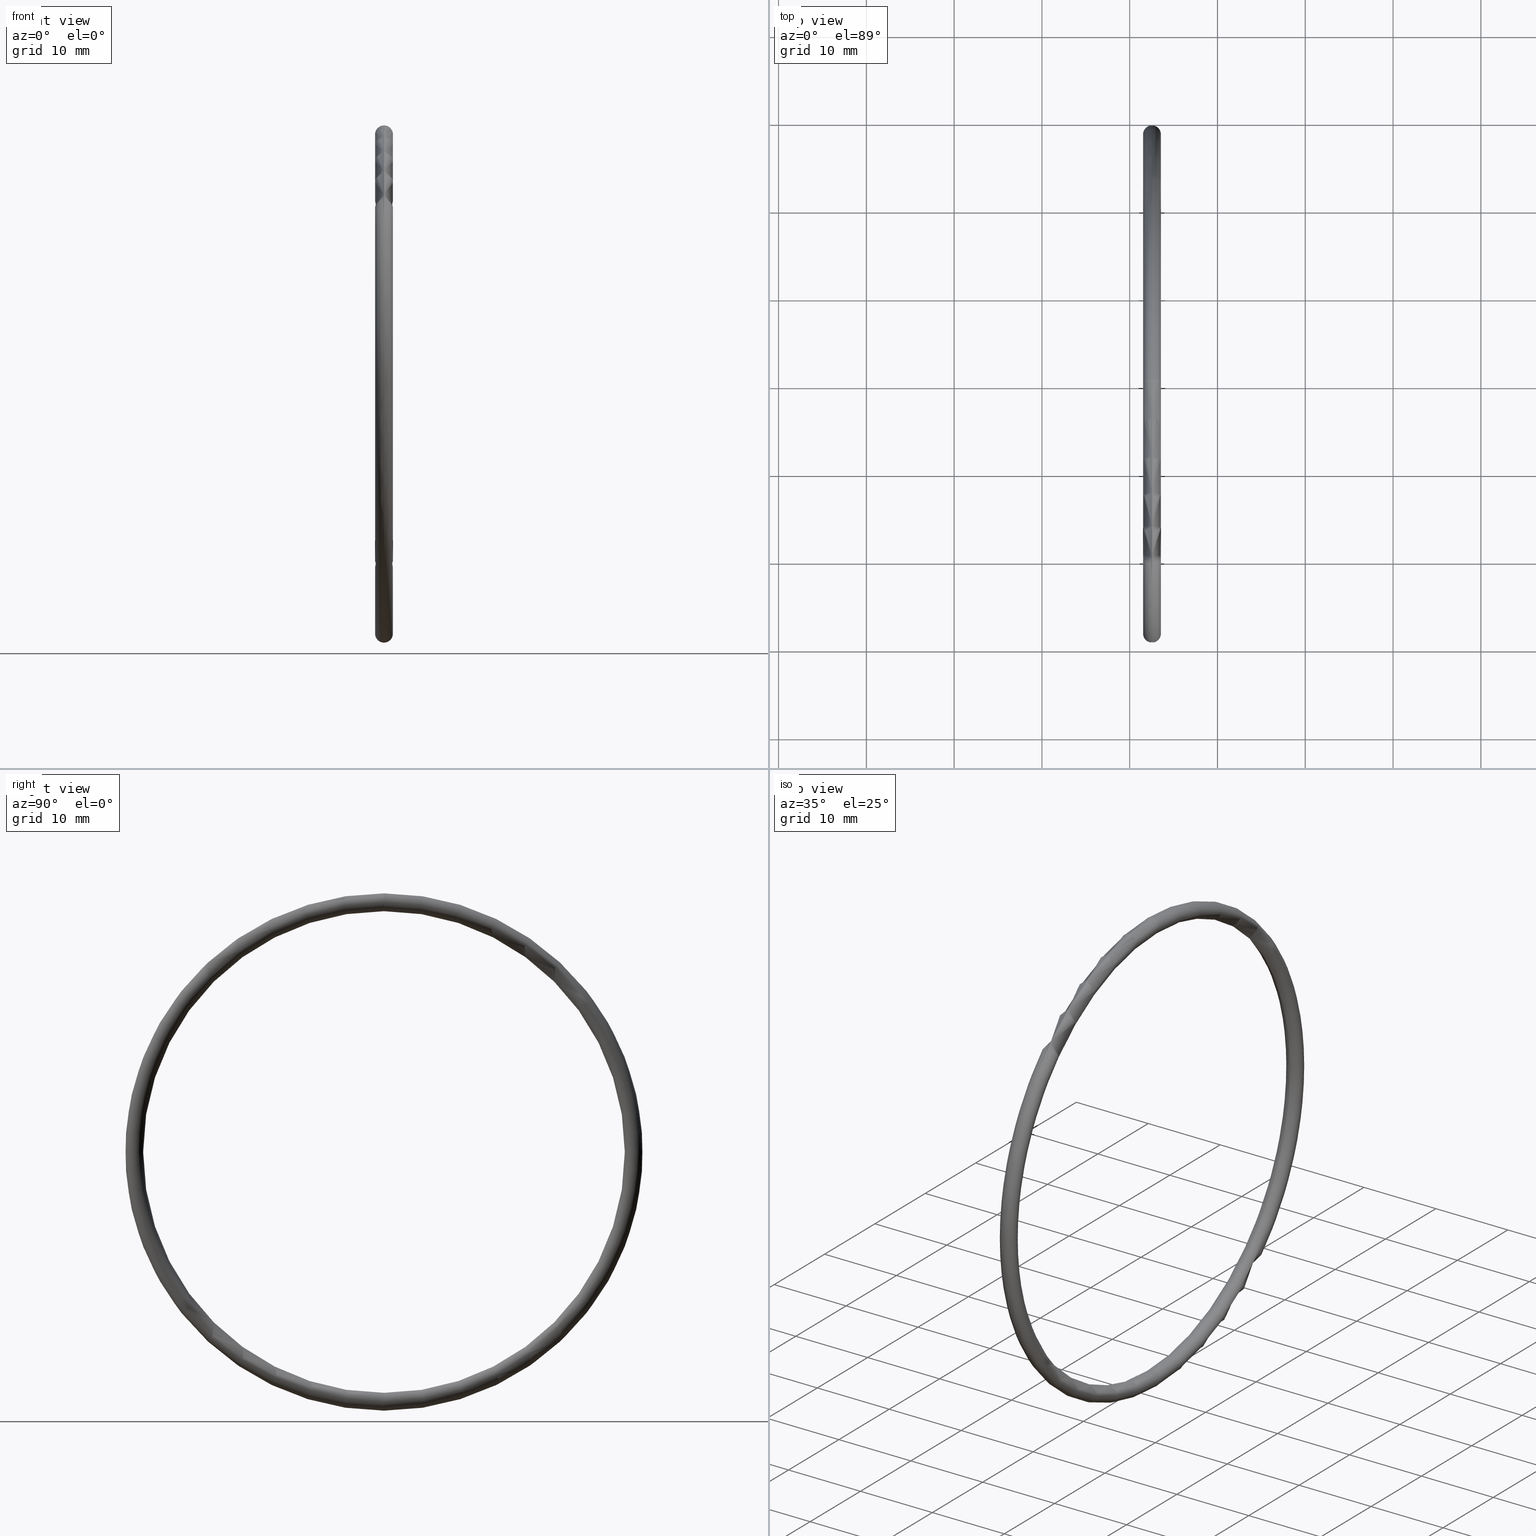
[diagram: canonical four-view strip — front | top / right | iso, engineering-drawing reading convention]
A machine part, canonical four-view strip (front | top / right | iso — engineering-drawing reading convention). The complete STEP part file that produces these views, byte-faithful:
ISO-10303-21;
HEADER;
FILE_DESCRIPTION (( 'STEP AP203' ),
    '1' );
FILE_NAME ('OM-63-BN.STEP',
    '2008-03-29T09:22:32',
    ( 'Baystate-05' ),
    ( 'BayState InfoTech' ),
    'SwSTEP 2.0',
    'SolidWorks 2007',
    '' );
FILE_SCHEMA (( 'CONFIG_CONTROL_DESIGN' ));
ENDSEC;

DATA;
#1 = TOROIDAL_SURFACE ( 'NONE', #2, 1.120000000000000100, 0.03999999999999995200 ) ;
#2 = AXIS2_PLACEMENT_3D ( 'NONE', #9, #15, #84 ) ;
#3 = FACE_OUTER_BOUND ( 'NONE', #34, .T. ) ;
#4 = DIRECTION ( 'NONE',  ( 0.0000000000000000000, -1.224646799147351000E-016, 1.000000000000000000 ) ) ;
#5 = DIRECTION ( 'NONE',  ( 0.0000000000000000000, 1.000000000000000000, 1.224646799147353200E-016 ) ) ;
#6 = CARTESIAN_POINT ( 'NONE',  ( 0.1000000000000001400, 1.371604415045035500E-016, -1.120000000000000100 ) ) ;
#7 = AXIS2_PLACEMENT_3D ( 'NONE', #6, #5, #4 ) ;
#8 = CIRCLE ( 'NONE', #7, 0.03999999999999998000 ) ;
#9 = CARTESIAN_POINT ( 'NONE',  ( 0.1000000000000001400, 0.0000000000000000000, 0.0000000000000000000 ) ) ;
#10 = DIRECTION ( 'NONE',  ( 0.0000000000000000000, 0.0000000000000000000, 1.000000000000000000 ) ) ;
#11 = DIRECTION ( 'NONE',  ( -1.000000000000000000, 0.0000000000000000000, 0.0000000000000000000 ) ) ;
#12 = CARTESIAN_POINT ( 'NONE',  ( 0.1000000000000001400, 0.0000000000000000000, 0.0000000000000000000 ) ) ;
#13 = AXIS2_PLACEMENT_3D ( 'NONE', #12, #11, #10 ) ;
#14 = CIRCLE ( 'NONE', #13, 1.080000000000000100 ) ;
#15 = DIRECTION ( 'NONE',  ( -1.000000000000000000, 0.0000000000000000000, 0.0000000000000000000 ) ) ;
#16 = CARTESIAN_POINT ( 'NONE',  ( 0.1000000000000001400, 0.0000000000000000000, 1.160000000000000100 ) ) ;
#17 = DIRECTION ( 'NONE',  ( 0.0000000000000000000, 0.0000000000000000000, 1.000000000000000000 ) ) ;
#18 = DIRECTION ( 'NONE',  ( -1.000000000000000000, 0.0000000000000000000, 0.0000000000000000000 ) ) ;
#19 = CARTESIAN_POINT ( 'NONE',  ( 0.1000000000000001400, 0.0000000000000000000, 0.0000000000000000000 ) ) ;
#20 = AXIS2_PLACEMENT_3D ( 'NONE', #19, #18, #17 ) ;
#21 = CIRCLE ( 'NONE', #20, 1.160000000000000100 ) ;
#22 = MANIFOLD_SOLID_BREP ( 'NONE', #31 ) ;
#23 = EDGE_CURVE ( 'NONE', #52, #53, #63, .T. ) ;
#24 = EDGE_CURVE ( 'NONE', #65, #25, #21, .T. ) ;
#25 = VERTEX_POINT ( 'NONE', #16 ) ;
#26 = ORIENTED_EDGE ( 'NONE', *, *, #27, .F. ) ;
#27 = EDGE_CURVE ( 'NONE', #53, #52, #14, .T. ) ;
#28 = ORIENTED_EDGE ( 'NONE', *, *, #45, .F. ) ;
#29 = ORIENTED_EDGE ( 'NONE', *, *, #27, .T. ) ;
#30 = ORIENTED_EDGE ( 'NONE', *, *, #42, .T. ) ;
#31 = CLOSED_SHELL ( 'NONE', ( #35, #33, #38, #46 ) ) ;
#32 = EDGE_CURVE ( 'NONE', #65, #53, #8, .T. ) ;
#33 = ADVANCED_FACE ( 'NONE', ( #3 ), #1, .T. ) ;
#34 = EDGE_LOOP ( 'NONE', ( #54, #55, #57, #58 ) ) ;
#35 = ADVANCED_FACE ( 'NONE', ( #66 ), #87, .T. ) ;
#36 = EDGE_LOOP ( 'NONE', ( #64, #49, #50, #26 ) ) ;
#37 = PERSON ( 'UNSPECIFIED', 'UNSPECIFIED', 'UNSPECIFIED', ('UNSPECIFIED'), ('UNSPECIFIED'), ('UNSPECIFIED') ) ;
#38 = ADVANCED_FACE ( 'NONE', ( #75 ), #67, .T. ) ;
#39 = EDGE_LOOP ( 'NONE', ( #40, #41, #43, #44 ) ) ;
#40 = ORIENTED_EDGE ( 'NONE', *, *, #56, .F. ) ;
#41 = ORIENTED_EDGE ( 'NONE', *, *, #42, .F. ) ;
#42 = EDGE_CURVE ( 'NONE', #52, #25, #70, .T. ) ;
#43 = ORIENTED_EDGE ( 'NONE', *, *, #23, .T. ) ;
#44 = ORIENTED_EDGE ( 'NONE', *, *, #45, .T. ) ;
#45 = EDGE_CURVE ( 'NONE', #53, #65, #79, .T. ) ;
#46 = ADVANCED_FACE ( 'NONE', ( #104 ), #93, .T. ) ;
#47 = EDGE_LOOP ( 'NONE', ( #48, #28, #29, #30 ) ) ;
#48 = ORIENTED_EDGE ( 'NONE', *, *, #24, .F. ) ;
#49 = ORIENTED_EDGE ( 'NONE', *, *, #24, .T. ) ;
#50 = ORIENTED_EDGE ( 'NONE', *, *, #51, .T. ) ;
#51 = EDGE_CURVE ( 'NONE', #25, #52, #94, .T. ) ;
#52 = VERTEX_POINT ( 'NONE', #98 ) ;
#53 = VERTEX_POINT ( 'NONE', #97 ) ;
#54 = ORIENTED_EDGE ( 'NONE', *, *, #51, .F. ) ;
#55 = ORIENTED_EDGE ( 'NONE', *, *, #56, .T. ) ;
#56 = EDGE_CURVE ( 'NONE', #25, #65, #113, .T. ) ;
#57 = ORIENTED_EDGE ( 'NONE', *, *, #32, .T. ) ;
#58 = ORIENTED_EDGE ( 'NONE', *, *, #23, .F. ) ;
#59 = DIRECTION ( 'NONE',  ( 0.0000000000000000000, 0.0000000000000000000, 1.000000000000000000 ) ) ;
#60 = DIRECTION ( 'NONE',  ( -1.000000000000000000, 0.0000000000000000000, 0.0000000000000000000 ) ) ;
#61 = CARTESIAN_POINT ( 'NONE',  ( 0.1000000000000001400, 0.0000000000000000000, 0.0000000000000000000 ) ) ;
#62 = AXIS2_PLACEMENT_3D ( 'NONE', #61, #60, #59 ) ;
#63 = CIRCLE ( 'NONE', #62, 1.080000000000000100 ) ;
#64 = ORIENTED_EDGE ( 'NONE', *, *, #32, .F. ) ;
#65 = VERTEX_POINT ( 'NONE', #122 ) ;
#66 = FACE_OUTER_BOUND ( 'NONE', #36, .T. ) ;
#67 = TOROIDAL_SURFACE ( 'NONE', #68, 1.120000000000000100, 0.03999999999999995200 ) ;
#68 = AXIS2_PLACEMENT_3D ( 'NONE', #74, #73, #72 ) ;
#69 = CARTESIAN_POINT ( 'NONE',  ( 0.1000000000000001400, 0.0000000000000000000, 1.120000000000000100 ) ) ;
#70 = CIRCLE ( 'NONE', #82, 0.03999999999999998000 ) ;
#71 = CARTESIAN_POINT ( 'NONE',  ( 0.1000000000000001400, 1.371604415045035500E-016, -1.120000000000000100 ) ) ;
#72 = DIRECTION ( 'NONE',  ( 0.0000000000000000000, 0.0000000000000000000, 1.000000000000000000 ) ) ;
#73 = DIRECTION ( 'NONE',  ( -1.000000000000000000, 0.0000000000000000000, 0.0000000000000000000 ) ) ;
#74 = CARTESIAN_POINT ( 'NONE',  ( 0.1000000000000001400, 0.0000000000000000000, 0.0000000000000000000 ) ) ;
#75 = FACE_OUTER_BOUND ( 'NONE', #39, .T. ) ;
#76 = DIRECTION ( 'NONE',  ( 0.0000000000000000000, -1.224646799147351000E-016, 1.000000000000000000 ) ) ;
#77 = DIRECTION ( 'NONE',  ( 0.0000000000000000000, 1.000000000000000000, 1.224646799147353200E-016 ) ) ;
#78 = AXIS2_PLACEMENT_3D ( 'NONE', #71, #77, #76 ) ;
#79 = CIRCLE ( 'NONE', #78, 0.03999999999999998000 ) ;
#80 = DIRECTION ( 'NONE',  ( 0.0000000000000000000, 0.0000000000000000000, -1.000000000000000000 ) ) ;
#81 = DIRECTION ( 'NONE',  ( 0.0000000000000000000, -1.000000000000000000, 0.0000000000000000000 ) ) ;
#82 = AXIS2_PLACEMENT_3D ( 'NONE', #69, #81, #80 ) ;
#83 = CARTESIAN_POINT ( 'NONE',  ( 0.1000000000000001400, 0.0000000000000000000, 0.0000000000000000000 ) ) ;
#84 = DIRECTION ( 'NONE',  ( 0.0000000000000000000, 0.0000000000000000000, 1.000000000000000000 ) ) ;
#85 = DIRECTION ( 'NONE',  ( 0.0000000000000000000, 0.0000000000000000000, 1.000000000000000000 ) ) ;
#86 = AXIS2_PLACEMENT_3D ( 'NONE', #83, #88, #85 ) ;
#87 = TOROIDAL_SURFACE ( 'NONE', #86, 1.120000000000000100, 0.03999999999999995200 ) ;
#88 = DIRECTION ( 'NONE',  ( -1.000000000000000000, 0.0000000000000000000, 0.0000000000000000000 ) ) ;
#89 = DIRECTION ( 'NONE',  ( 1.000000000000000000, 0.0000000000000000000, 0.0000000000000000000 ) ) ;
#90 = DIRECTION ( 'NONE',  ( 0.0000000000000000000, 0.0000000000000000000, 1.000000000000000000 ) ) ;
#91 = CARTESIAN_POINT ( 'NONE',  ( 0.0000000000000000000, 0.0000000000000000000, 0.0000000000000000000 ) ) ;
#92 = AXIS2_PLACEMENT_3D ( 'NONE', #91, #90, #89 ) ;
#93 = TOROIDAL_SURFACE ( 'NONE', #100, 1.120000000000000100, 0.03999999999999995200 ) ;
#94 = CIRCLE ( 'NONE', #115, 0.03999999999999998000 ) ;
#95 = ADVANCED_BREP_SHAPE_REPRESENTATION ( 'OM-63-BN', ( #22, #92 ), #99 ) ;
#96 = CARTESIAN_POINT ( 'NONE',  ( 0.1000000000000001400, 0.0000000000000000000, 0.0000000000000000000 ) ) ;
#97 = CARTESIAN_POINT ( 'NONE',  ( 0.1000000000000001400, 1.322618543079141500E-016, -1.080000000000000100 ) ) ;
#98 = CARTESIAN_POINT ( 'NONE',  ( 0.1000000000000001400, 0.0000000000000000000, 1.080000000000000100 ) ) ;
#99 =( GEOMETRIC_REPRESENTATION_CONTEXT ( 3 ) GLOBAL_UNCERTAINTY_ASSIGNED_CONTEXT ( ( #117 ) ) GLOBAL_UNIT_ASSIGNED_CONTEXT ( ( #119, #101, #118 ) ) REPRESENTATION_CONTEXT ( 'NONE', 'WORKASPACE' ) );
#100 = AXIS2_PLACEMENT_3D ( 'NONE', #96, #105, #121 ) ;
#101 =( NAMED_UNIT ( * ) PLANE_ANGLE_UNIT ( ) SI_UNIT ( $, .RADIAN. ) );
#102 = CARTESIAN_POINT ( 'NONE',  ( 0.1000000000000001400, 0.0000000000000000000, 1.120000000000000100 ) ) ;
#103 = DIMENSIONAL_EXPONENTS ( 1.000000000000000000, 0.0000000000000000000, 0.0000000000000000000, 0.0000000000000000000, 0.0000000000000000000, 0.0000000000000000000, 0.0000000000000000000 ) ;
#104 = FACE_OUTER_BOUND ( 'NONE', #47, .T. ) ;
#105 = DIRECTION ( 'NONE',  ( -1.000000000000000000, 0.0000000000000000000, 0.0000000000000000000 ) ) ;
#106 =( LENGTH_UNIT ( ) NAMED_UNIT ( * ) SI_UNIT ( $, .METRE. ) );
#107 = PRODUCT ( 'OM-63-BN', 'OM-63-BN', '', ( #108 ) ) ;
#108 = MECHANICAL_CONTEXT ( 'NONE', #110, 'mechanical' ) ;
#109 = APPLICATION_PROTOCOL_DEFINITION ( 'international standard', 'config_control_design', 1994, #110 ) ;
#110 = APPLICATION_CONTEXT ( 'configuration controlled 3d designs of mechanical parts and assemblies' ) ;
#111 = CARTESIAN_POINT ( 'NONE',  ( 0.1000000000000001400, 0.0000000000000000000, 0.0000000000000000000 ) ) ;
#112 = AXIS2_PLACEMENT_3D ( 'NONE', #111, #124, #123 ) ;
#113 = CIRCLE ( 'NONE', #112, 1.160000000000000100 ) ;
#114 = DIRECTION ( 'NONE',  ( 0.0000000000000000000, 0.0000000000000000000, -1.000000000000000000 ) ) ;
#115 = AXIS2_PLACEMENT_3D ( 'NONE', #102, #116, #114 ) ;
#116 = DIRECTION ( 'NONE',  ( 0.0000000000000000000, -1.000000000000000000, 0.0000000000000000000 ) ) ;
#117 = UNCERTAINTY_MEASURE_WITH_UNIT (LENGTH_MEASURE( 1.000000000000000100E-005 ), #119, 'distance_accuracy_value', 'NONE');
#118 =( NAMED_UNIT ( * ) SI_UNIT ( $, .STERADIAN. ) SOLID_ANGLE_UNIT ( ) );
#119 =( CONVERSION_BASED_UNIT ( 'INCH', #120 ) LENGTH_UNIT ( ) NAMED_UNIT ( #103 ) );
#120 = LENGTH_MEASURE_WITH_UNIT ( LENGTH_MEASURE( 0.02539999999999999900 ), #106 );
#121 = DIRECTION ( 'NONE',  ( 0.0000000000000000000, 0.0000000000000000000, 1.000000000000000000 ) ) ;
#122 = CARTESIAN_POINT ( 'NONE',  ( 0.1000000000000001400, 1.420590287010929800E-016, -1.160000000000000100 ) ) ;
#123 = DIRECTION ( 'NONE',  ( 0.0000000000000000000, 0.0000000000000000000, 1.000000000000000000 ) ) ;
#124 = DIRECTION ( 'NONE',  ( -1.000000000000000000, 0.0000000000000000000, 0.0000000000000000000 ) ) ;
#125 = PERSON_AND_ORGANIZATION_ROLE ( 'design_owner' ) ;
#126 = ORGANIZATION ( 'UNSPECIFIED', 'UNSPECIFIED', '' ) ;
#127 = PERSON_AND_ORGANIZATION ( #37, #126 ) ;
#128 = DATE_AND_TIME ( #129, #130 ) ;
#129 = CALENDAR_DATE ( 2008, 29, 3 ) ;
#130 = LOCAL_TIME ( 14, 52, 32.00000000000000000, #154 ) ;
#131 = CALENDAR_DATE ( 2008, 29, 3 ) ;
#132 = LOCAL_TIME ( 14, 52, 32.00000000000000000, #133 ) ;
#133 = COORDINATED_UNIVERSAL_TIME_OFFSET ( 5, 30, .AHEAD. ) ;
#134 = APPROVAL_PERSON_ORGANIZATION ( #159, #164, #163 ) ;
#135 = PERSON_AND_ORGANIZATION_ROLE ( 'design_supplier' ) ;
#136 = PERSON_AND_ORGANIZATION ( #37, #126 ) ;
#137 = APPLICATION_CONTEXT ( 'configuration controlled 3d designs of mechanical parts and assemblies' ) ;
#138 = CALENDAR_DATE ( 2008, 29, 3 ) ;
#139 = LOCAL_TIME ( 14, 52, 32.00000000000000000, #190 ) ;
#140 = PERSON_AND_ORGANIZATION ( #37, #126 ) ;
#141 = SECURITY_CLASSIFICATION_LEVEL ( 'unclassified' ) ;
#142 = CC_DESIGN_PERSON_AND_ORGANIZATION_ASSIGNMENT ( #136, #135, ( #166 ) ) ;
#143 = DESIGN_CONTEXT ( 'detailed design', #137, 'design' ) ;
#144 = APPROVAL_DATE_TIME ( #189, #178 ) ;
#145 = APPROVAL_ROLE ( '' ) ;
#146 = APPROVAL_STATUS ( 'not_yet_approved' ) ;
#147 = CC_DESIGN_APPROVAL ( #178, ( #152 ) ) ;
#148 = PERSON_AND_ORGANIZATION ( #37, #126 ) ;
#149 = LOCAL_TIME ( 14, 52, 32.00000000000000000, #151 ) ;
#150 = APPLICATION_PROTOCOL_DEFINITION ( 'international standard', 'config_control_design', 1994, #137 ) ;
#151 = COORDINATED_UNIVERSAL_TIME_OFFSET ( 5, 30, .AHEAD. ) ;
#152 = PRODUCT_DEFINITION ( 'UNKNOWN', '', #166, #143 ) ;
#153 = CC_DESIGN_PERSON_AND_ORGANIZATION_ASSIGNMENT ( #127, #125, ( #107 ) ) ;
#154 = COORDINATED_UNIVERSAL_TIME_OFFSET ( 5, 30, .AHEAD. ) ;
#155 = CC_DESIGN_PERSON_AND_ORGANIZATION_ASSIGNMENT ( #157, #156, ( #158 ) ) ;
#156 = PERSON_AND_ORGANIZATION_ROLE ( 'classification_officer' ) ;
#157 = PERSON_AND_ORGANIZATION ( #37, #126 ) ;
#158 = SECURITY_CLASSIFICATION ( '', '', #141 ) ;
#159 = PERSON_AND_ORGANIZATION ( #37, #126 ) ;
#160 = PERSON_AND_ORGANIZATION ( #37, #126 ) ;
#161 = CC_DESIGN_DATE_AND_TIME_ASSIGNMENT ( #128, #162, ( #158 ) ) ;
#162 = DATE_TIME_ROLE ( 'classification_date' ) ;
#163 = APPROVAL_ROLE ( '' ) ;
#164 = APPROVAL ( #165, 'UNSPECIFIED' ) ;
#165 = APPROVAL_STATUS ( 'not_yet_approved' ) ;
#166 = PRODUCT_DEFINITION_FORMATION_WITH_SPECIFIED_SOURCE ( 'ANY', '', #107, .NOT_KNOWN. ) ;
#167 = LOCAL_TIME ( 14, 52, 32.00000000000000000, #168 ) ;
#168 = COORDINATED_UNIVERSAL_TIME_OFFSET ( 5, 30, .AHEAD. ) ;
#169 = APPROVAL_PERSON_ORGANIZATION ( #160, #171, #170 ) ;
#170 = APPROVAL_ROLE ( '' ) ;
#171 = APPROVAL ( #172, 'UNSPECIFIED' ) ;
#172 = APPROVAL_STATUS ( 'not_yet_approved' ) ;
#173 = CC_DESIGN_PERSON_AND_ORGANIZATION_ASSIGNMENT ( #180, #174, ( #166 ) ) ;
#174 = PERSON_AND_ORGANIZATION_ROLE ( 'creator' ) ;
#175 = PRODUCT_RELATED_PRODUCT_CATEGORY ( 'detail', '', ( #107 ) ) ;
#176 = CC_DESIGN_PERSON_AND_ORGANIZATION_ASSIGNMENT ( #140, #177, ( #152 ) ) ;
#177 = PERSON_AND_ORGANIZATION_ROLE ( 'creator' ) ;
#178 = APPROVAL ( #146, 'UNSPECIFIED' ) ;
#179 = APPROVAL_PERSON_ORGANIZATION ( #148, #178, #145 ) ;
#180 = PERSON_AND_ORGANIZATION ( #37, #126 ) ;
#181 = CC_DESIGN_APPROVAL ( #164, ( #166 ) ) ;
#182 = APPROVAL_DATE_TIME ( #183, #164 ) ;
#183 = DATE_AND_TIME ( #131, #132 ) ;
#184 = CC_DESIGN_SECURITY_CLASSIFICATION ( #158, ( #166 ) ) ;
#185 = CC_DESIGN_APPROVAL ( #171, ( #158 ) ) ;
#186 = APPROVAL_DATE_TIME ( #187, #171 ) ;
#187 = DATE_AND_TIME ( #188, #167 ) ;
#188 = CALENDAR_DATE ( 2008, 29, 3 ) ;
#189 = DATE_AND_TIME ( #138, #139 ) ;
#190 = COORDINATED_UNIVERSAL_TIME_OFFSET ( 5, 30, .AHEAD. ) ;
#191 = SHAPE_DEFINITION_REPRESENTATION ( #192, #95 ) ;
#192 = PRODUCT_DEFINITION_SHAPE ( 'NONE', 'NONE',  #152 ) ;
#193 = CC_DESIGN_DATE_AND_TIME_ASSIGNMENT ( #195, #194, ( #152 ) ) ;
#194 = DATE_TIME_ROLE ( 'creation_date' ) ;
#195 = DATE_AND_TIME ( #196, #149 ) ;
#196 = CALENDAR_DATE ( 2008, 29, 3 ) ;
ENDSEC;
END-ISO-10303-21;
